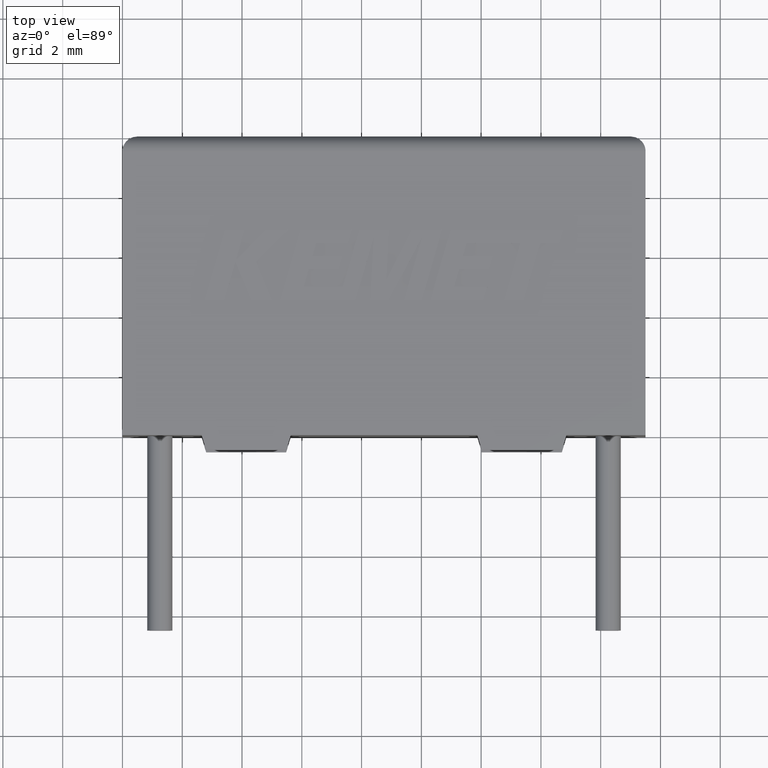
[diagram: clean part render]
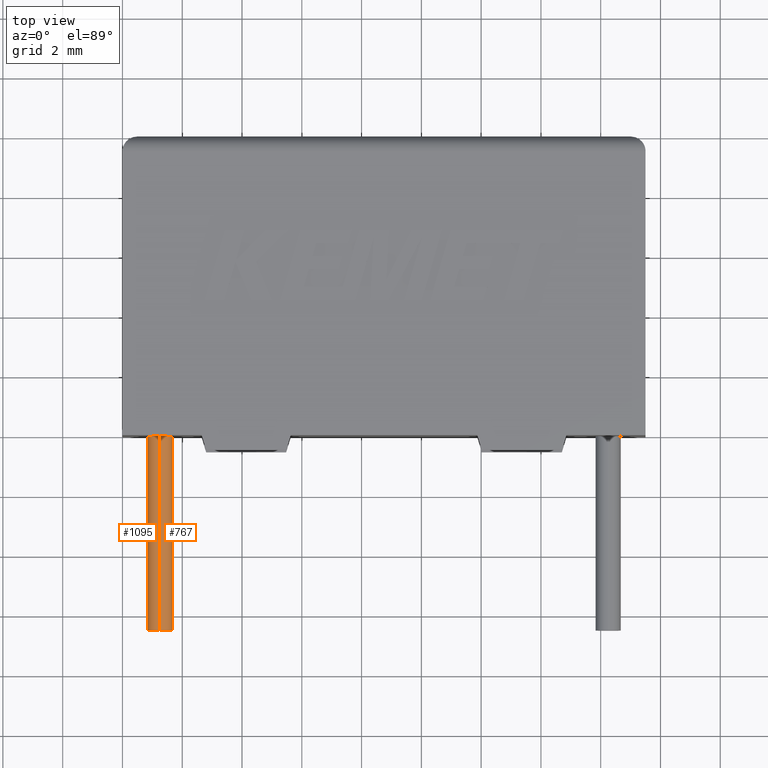
[diagram: same view with one multi-face feature highlighted, each face labeled with its STEP entity id]
A machine part, top view. The highlighted faces form ONE feature: a constant-radius fillet chain: 2 tangent blend faces with common blend radius 0.425 mm. The faces share edges in the B-rep.
Their STEP definitions:
[1] entity #1095 (Cylinder):
#108 = CARTESIAN_POINT ( 'NONE',  ( 1.250000000000001100, 0.0000000000000000000, 2.675000000000000700 ) ) ;
#203 = AXIS2_PLACEMENT_3D ( 'NONE', #913, #2687, #3167 ) ;
#303 = AXIS2_PLACEMENT_3D ( 'NONE', #2259, #3025, #2268 ) ;
#363 = CARTESIAN_POINT ( 'NONE',  ( 1.250000000000001100, -6.500000000000000000, 2.250000000000000900 ) ) ;
#449 = CARTESIAN_POINT ( 'NONE',  ( 1.250000000000001100, 0.0000000000000000000, 1.825000000000000600 ) ) ;
#507 = FACE_OUTER_BOUND ( 'NONE', #2960, .T. ) ;
#608 = DIRECTION ( 'NONE',  ( -0.0000000000000000000, 1.000000000000000000, -0.0000000000000000000 ) ) ;
#698 = AXIS2_PLACEMENT_3D ( 'NONE', #363, #608, #1873 ) ;
#913 = CARTESIAN_POINT ( 'NONE',  ( 1.250000000000001100, 0.0000000000000000000, 2.250000000000000900 ) ) ;
#1052 = LINE ( 'NONE', #1608, #2542 ) ;
#1095 = ADVANCED_FACE ( 'NONE', ( #507 ), #3184, .T. ) ;
#1119 = DIRECTION ( 'NONE',  ( -0.0000000000000000000, 1.000000000000000000, -0.0000000000000000000 ) ) ;
#1254 = VERTEX_POINT ( 'NONE', #3209 ) ;
#1428 = LINE ( 'NONE', #2170, #1468 ) ;
#1468 = VECTOR ( 'NONE', #1926, 1000.000000000000000 ) ;
#1608 = CARTESIAN_POINT ( 'NONE',  ( 1.250000000000001100, -6.500000000000000000, 2.675000000000000700 ) ) ;
#1630 = CIRCLE ( 'NONE', #203, 0.4250000000000000400 ) ;
#1694 = VERTEX_POINT ( 'NONE', #108 ) ;
#1733 = ORIENTED_EDGE ( 'NONE', *, *, #2935, .F. ) ;
#1746 = CIRCLE ( 'NONE', #303, 0.4250000000000000400 ) ;
#1873 = DIRECTION ( 'NONE',  ( 0.0000000000000000000, 0.0000000000000000000, 1.000000000000000000 ) ) ;
#1926 = DIRECTION ( 'NONE',  ( -0.0000000000000000000, 1.000000000000000000, -0.0000000000000000000 ) ) ;
#2035 = EDGE_CURVE ( 'NONE', #1254, #1694, #1052, .T. ) ;
#2100 = EDGE_CURVE ( 'NONE', #1694, #2693, #1630, .T. ) ;
#2170 = CARTESIAN_POINT ( 'NONE',  ( 1.250000000000001100, -6.500000000000000000, 1.825000000000000600 ) ) ;
#2259 = CARTESIAN_POINT ( 'NONE',  ( 1.250000000000001100, -6.500000000000000000, 2.250000000000000900 ) ) ;
#2268 = DIRECTION ( 'NONE',  ( 0.0000000000000000000, 0.0000000000000000000, -1.000000000000000000 ) ) ;
#2279 = VERTEX_POINT ( 'NONE', #2739 ) ;
#2542 = VECTOR ( 'NONE', #1119, 1000.000000000000000 ) ;
#2687 = DIRECTION ( 'NONE',  ( -0.0000000000000000000, -1.000000000000000000, -0.0000000000000000000 ) ) ;
#2693 = VERTEX_POINT ( 'NONE', #449 ) ;
#2726 = ORIENTED_EDGE ( 'NONE', *, *, #2035, .T. ) ;
#2739 = CARTESIAN_POINT ( 'NONE',  ( 1.250000000000001100, -6.500000000000000000, 1.825000000000000600 ) ) ;
#2806 = ORIENTED_EDGE ( 'NONE', *, *, #3175, .F. ) ;
#2935 = EDGE_CURVE ( 'NONE', #1254, #2279, #1746, .T. ) ;
#2960 = EDGE_LOOP ( 'NONE', ( #2806, #1733, #2726, #3074 ) ) ;
#3025 = DIRECTION ( 'NONE',  ( 0.0000000000000000000, -1.000000000000000000, 0.0000000000000000000 ) ) ;
#3074 = ORIENTED_EDGE ( 'NONE', *, *, #2100, .T. ) ;
#3167 = DIRECTION ( 'NONE',  ( 0.0000000000000000000, 0.0000000000000000000, 1.000000000000000000 ) ) ;
#3175 = EDGE_CURVE ( 'NONE', #2279, #2693, #1428, .T. ) ;
#3184 = CYLINDRICAL_SURFACE ( 'NONE', #698, 0.4250000000000000400 ) ;
#3209 = CARTESIAN_POINT ( 'NONE',  ( 1.250000000000001100, -6.500000000000000000, 2.675000000000000700 ) ) ;
[2] entity #767 (Cylinder):
#42 = ORIENTED_EDGE ( 'NONE', *, *, #530, .T. ) ;
#108 = CARTESIAN_POINT ( 'NONE',  ( 1.250000000000001100, 0.0000000000000000000, 2.675000000000000700 ) ) ;
#198 = AXIS2_PLACEMENT_3D ( 'NONE', #2666, #923, #2772 ) ;
#366 = CARTESIAN_POINT ( 'NONE',  ( 1.250000000000001100, 0.0000000000000000000, 2.250000000000000900 ) ) ;
#449 = CARTESIAN_POINT ( 'NONE',  ( 1.250000000000001100, 0.0000000000000000000, 1.825000000000000600 ) ) ;
#530 = EDGE_CURVE ( 'NONE', #2693, #1694, #2393, .T. ) ;
#532 = DIRECTION ( 'NONE',  ( 0.0000000000000000000, -1.000000000000000000, 0.0000000000000000000 ) ) ;
#551 = CARTESIAN_POINT ( 'NONE',  ( 1.250000000000001100, -6.500000000000000000, 2.250000000000000900 ) ) ;
#620 = DIRECTION ( 'NONE',  ( -0.0000000000000000000, -1.000000000000000000, -0.0000000000000000000 ) ) ;
#703 = EDGE_LOOP ( 'NONE', ( #1604, #2535, #42, #2078 ) ) ;
#767 = ADVANCED_FACE ( 'NONE', ( #946 ), #3065, .T. ) ;
#923 = DIRECTION ( 'NONE',  ( -0.0000000000000000000, 1.000000000000000000, -0.0000000000000000000 ) ) ;
#946 = FACE_OUTER_BOUND ( 'NONE', #703, .T. ) ;
#980 = CIRCLE ( 'NONE', #1353, 0.4250000000000000400 ) ;
#1052 = LINE ( 'NONE', #1608, #2542 ) ;
#1119 = DIRECTION ( 'NONE',  ( -0.0000000000000000000, 1.000000000000000000, -0.0000000000000000000 ) ) ;
#1254 = VERTEX_POINT ( 'NONE', #3209 ) ;
#1353 = AXIS2_PLACEMENT_3D ( 'NONE', #551, #532, #1523 ) ;
#1428 = LINE ( 'NONE', #2170, #1468 ) ;
#1468 = VECTOR ( 'NONE', #1926, 1000.000000000000000 ) ;
#1471 = EDGE_CURVE ( 'NONE', #2279, #1254, #980, .T. ) ;
#1523 = DIRECTION ( 'NONE',  ( 0.0000000000000000000, 0.0000000000000000000, -1.000000000000000000 ) ) ;
#1604 = ORIENTED_EDGE ( 'NONE', *, *, #1471, .F. ) ;
#1608 = CARTESIAN_POINT ( 'NONE',  ( 1.250000000000001100, -6.500000000000000000, 2.675000000000000700 ) ) ;
#1694 = VERTEX_POINT ( 'NONE', #108 ) ;
#1891 = AXIS2_PLACEMENT_3D ( 'NONE', #366, #620, #2386 ) ;
#1926 = DIRECTION ( 'NONE',  ( -0.0000000000000000000, 1.000000000000000000, -0.0000000000000000000 ) ) ;
#2035 = EDGE_CURVE ( 'NONE', #1254, #1694, #1052, .T. ) ;
#2078 = ORIENTED_EDGE ( 'NONE', *, *, #2035, .F. ) ;
#2170 = CARTESIAN_POINT ( 'NONE',  ( 1.250000000000001100, -6.500000000000000000, 1.825000000000000600 ) ) ;
#2279 = VERTEX_POINT ( 'NONE', #2739 ) ;
#2386 = DIRECTION ( 'NONE',  ( 0.0000000000000000000, 0.0000000000000000000, 1.000000000000000000 ) ) ;
#2393 = CIRCLE ( 'NONE', #1891, 0.4250000000000000400 ) ;
#2535 = ORIENTED_EDGE ( 'NONE', *, *, #3175, .T. ) ;
#2542 = VECTOR ( 'NONE', #1119, 1000.000000000000000 ) ;
#2666 = CARTESIAN_POINT ( 'NONE',  ( 1.250000000000001100, -6.500000000000000000, 2.250000000000000900 ) ) ;
#2693 = VERTEX_POINT ( 'NONE', #449 ) ;
#2739 = CARTESIAN_POINT ( 'NONE',  ( 1.250000000000001100, -6.500000000000000000, 1.825000000000000600 ) ) ;
#2772 = DIRECTION ( 'NONE',  ( 0.0000000000000000000, 0.0000000000000000000, 1.000000000000000000 ) ) ;
#3065 = CYLINDRICAL_SURFACE ( 'NONE', #198, 0.4250000000000000400 ) ;
#3175 = EDGE_CURVE ( 'NONE', #2279, #2693, #1428, .T. ) ;
#3209 = CARTESIAN_POINT ( 'NONE',  ( 1.250000000000001100, -6.500000000000000000, 2.675000000000000700 ) ) ;